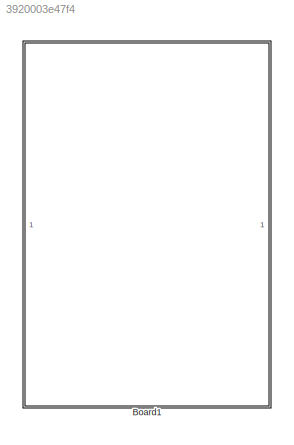
MODEL slx_3920003e47f4
KIND model
CONFIG AbsTol = auto
CONFIG EnableMultiTasking = off
CONFIG FixedStep = auto
CONFIG MaxStep = auto
CONFIG MinStep = auto
CONFIG RelTol = 1e-3
CONFIG SampleTimeConstraint = Unconstrained
CONFIG SolverName = FixedStepDiscrete
CONFIG StartTime = 0.0
CONFIG StopTime = 10.0
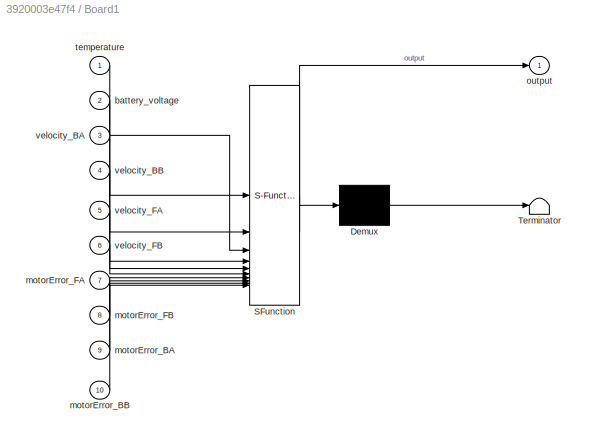
BLOCK [SubSystem] Board1
  ErrorFcn = Stateflow.Translate.translate
  PermitHierarchicalResolution = ExplicitOnly
  PortSchema = {"entries":[{"content":{"sides":[{"content":{"connectorIds":["In1","In2","In5","In6","In7","In8","In9","In10","In3","In4"]},"type":"ConnectorPlacement.EquallySpacedRectSide","uuid":"b6a15a71-62ba-4c0a-9258-d789a7bdd6d1"},{"content":{"connectorIds":["Out1"],"side":"RIGHT"},"type":"ConnectorPlacement.EquallySpacedRectSide","uuid":"3fc9ae7f-a60a-4f21-93ff-22852c889f3a"},{"content":{"side":"TOP"},"typ...<+277ch>
  SFBlockType = Chart
  TreatAsAtomicUnit = on
BLOCK [Demux] Board1/ Demux 
  Outputs = 1
BLOCK [S-Function] Board1/ SFunction 
  EnableBusSupport = off
  FunctionName = sf_sfun
  PortCounts = [10 2]
  SFcnIsStateOwnerBlock = off
  SFunctionDeploymentMode = off
  Tag = Stateflow S-Function 2
BLOCK [Terminator] Board1/ Terminator 
BLOCK [Inport] Board1/battery_voltage
  Port = 2
BLOCK [Inport] Board1/motorError_BA
  Port = 9
BLOCK [Inport] Board1/motorError_BB
  Port = 10
BLOCK [Inport] Board1/motorError_FA
  Port = 7
BLOCK [Inport] Board1/motorError_FB
  Port = 8
BLOCK [Outport] Board1/output
BLOCK [Inport] Board1/temperature
BLOCK [Inport] Board1/velocity_BA
  Port = 3
BLOCK [Inport] Board1/velocity_BB
  Port = 4
BLOCK [Inport] Board1/velocity_FA
  Port = 5
BLOCK [Inport] Board1/velocity_FB
  Port = 6
CHART Board1 states=192 transitions=383
  STATE_LABEL 'setSTalk'
  STATE_LABEL "SCRIPT:\nfunction setSTalk\n% Imposta a livello alto (1) la linea di controllo S_TALK (Slave Talk).\n%\n% Descrizione:\n%   La Board (Slave) chiama questa funzione per asserire il controllo del bus.\n%\n% Dipendenze:\n%   Richiede 'board1_functions.h' e l'implementazione C di 'IO_Set_SlaveTalk'.\n\n    coder.cinclude('board1_functions.h');\n    coder.ceval('IO_Set_SlaveTalk');\n\nend"
  STATE_LABEL 'Init_Data'
  STATE_LABEL "SCRIPT:\nfunction Init_Data\n% Inizializzazione globale del sistema e configurazione di default.\n%\n% Descrizione:\n%   Questa funzione prepara l'ambiente di lavoro iniziale:\n%   1. Richiama i costruttori per tutte le strutture dati complesse\n%   2. Imposta le variabili operative di default.\n\n    % Inizializzazione stati logici\n    state = Init_State(); \n    global_state = Init_Global_State(); \n    de...<+3608ch>"
  STATE_LABEL 'Supervision_task'
  STATE_LABEL 'Board_state'
  STATE_LABEL 'y = isSessionhigh'
  STATE_LABEL "SCRIPT:\nfunction y = isSessionhigh\n% Legge lo stato del segnale SESSION.\n%\n% Output:\n%   - y: Boolean\n%     - true: Il segnale hardware SESSION è a livello ALTO (Attivo).\n%     - false: Il segnale è BASSO (Inattivo).\n%\n% Dipendenze:\n%   Interroga l'hardware tramite la funzione esterna 'IO_Read_Session()' \n%   definita in 'board1_functions.h'.\n\n    coder.cinclude('board1_functions.h');\n    y = fals...<+79ch>"
  STATE_LABEL 'y = Get_Timestamp'
  STATE_LABEL "SCRIPT:\nfunction y = Get_Timestamp\n% Ottiene il timestamp attuale del sistema.\n%\n% Descrizione:\n%   Wrapper per la funzione C 'Time_Get_Tick'. Restituisce il valore corrente\n%   del timer di sistema. Questo valore viene salvato e utilizzato come \n%   punto di partenza per calcolare i timeout nelle transizioni di stato.\n%\n% Output:\n%   - y: uint32 rappresentante il tempo attuale del microcontrollor...<+196ch>"
  STATE_LABEL 'y = Check_Timeout_Us(start_time, min_elapsed_time)'
  STATE_LABEL "SCRIPT:\nfunction y = Check_Timeout_Us(start_time, min_elapsed_time)\n% Verifica se è trascorso un intervallo di tempo specifico (in microsecondi).\n%\n% Descrizione:\n%   Funzione che calcola la differenza tra il tempo attuale e lo 'start_time'. \n%   Restituisce true solo se il delta supera 'min_elapsed_time'.\n%   È il cuore della gestione dei timeout per l'handshake e la ricezione pacchetti.\n%\n% Inpu...<+423ch>"
  STATE_LABEL 'y = Check_Timeout_Ms(start_time, min_elapsed_time)'
  STATE_LABEL "SCRIPT:\nfunction y = Check_Timeout_Ms(start_time, min_elapsed_time)\n% Verifica se è trascorso un intervallo di tempo specifico (in MILLISECONDI).\n%\n% Descrizione:\n%   Funzione per la gestione di timeout o ritardi nell'ordine\n%   dei millisecondi (ms). Calcola la differenza tra il tick attuale di sistema\n%   e lo 'start_time'. Restituisce true se il delta supera la soglia.\n%   \n%   A differenza di ...<+502ch>"
  STATE_LABEL 'y = isMTalkhigh'
  STATE_LABEL "SCRIPT:\nfunction y = isMTalkhigh\n% Legge lo stato della linea M_TALK (Master Talk).\n%\n% Output:\n%   - y: Boolean\n%     - true: La Board Master sta asserendo la linea (Livello Alto).\n%     - false: La linea M_TALK è bassa (Idle).\n%\n% Dipendenze:\n%   Chiama la funzione esterna 'IO_Read_MasterTalk()' da 'board1_functions.h'.\n\n    coder.cinclude('board1_functions.h');\n    y = false; % Inizializzazione...<+61ch>"
  STATE_LABEL 'Normal\nex: Abort_Communication();\n'
  STATE_LABEL 'Supervisor'
  STATE_LABEL 'Waiting_to_start\n\n'
  STATE_LABEL 'Receive_state\nen: Wait_State(); resetSTalk(); time_comm = Get_Timestamp();'
  STATE_LABEL 'Update_Local_State'
  STATE_LABEL 'SCRIPT:\nfunction Update_Local_State\n% Aggiorna la struttura dello stato locale con i valori correnti dei sensori.\n%\n% Descrizione:\n%   Questa funzione esegue uno "snapshot" istantaneo di tutte le variabili \n%   di input (batteria, temperatura, velocità motori) e le copia \n%   nella struttura \'state\'. \n\n    coder.cinclude(\'board1_functions.h\');\n    \n    % Ingresso sezione critica: Disabilita interr...<+594ch>'
  STATE_LABEL 'Wait_State'
  STATE_LABEL "SCRIPT:\nfunction Wait_State\n% Predispone la ricezione del pacchetto Stato Locale.\n%\n% Descrizione:\n%   Configura il driver UART per ricevere i dati in arrivo e salvarli nella \n%   struttura 'receivedStatePacket'.\n%\n% Dipendenze:\n%   Richiede 'board1_functions.h' e l'implementazione C di 'UART_Wait_State'.\n\n    coder.cinclude('board1_functions.h');\n    coder.ceval('UART_Wait_State', coder.ref(recei...<+21ch>"
  STATE_LABEL 'Update_Global_State'
  STATE_LABEL "SCRIPT:\nfunction Update_Global_State\n% Costruisce la visione globale del sistema.\n%\n% Descrizione:\n%   Questa funzione aggrega le informazioni provenienti dalle due fonti \n%   disponibili per creare il 'Global State':\n%   1. Dati Remoti: Estratti dal pacchetto ricevuto (receivedStatePacket).\n%   2. Dati Locali: Presi dalla struttura 'state' appena.\n%   3. Logica Derivata: Flag calcolati dalla logi...<+977ch>"
  STATE_LABEL 'Wait_Global_State'
  STATE_LABEL "SCRIPT:\nfunction Wait_Global_State\n% Predispone la ricezione del pacchetto Stato Globale.\n%\n% Descrizione:\n%   Configura la ricezione per il pacchetto di Global State.\n%   I dati ricevuti verranno scritti in 'receivedGlobalStatePacket'.\n%\n% Dipendenze:\n%   Richiede 'board1_functions.h' e l'implementazione C di 'UART_Wait_GlobalState'.\n\n    coder.cinclude('board1_functions.h');\n    coder.ceval('UAR...<+63ch>"
  STATE_LABEL 'Send_Local_State'
  STATE_LABEL "SCRIPT:\nfunction Send_Local_State\n% Avvia la trasmissione del pacchetto Stato Locale via UART.\n%\n% Descrizione:\n%   Invoca la routine C che calcola il CRC, serializza la struttura 'state'\n%   e avvia il trasferimento per l'invio.\n%\n% Dipendenze:\n%   Richiede 'board1_functions.h' e l'implementazione C di 'UART_Send_Local_State'.\n\n    coder.cinclude('board1_functions.h');\n    coder.ceval('UART_Send_...<+37ch>"
  STATE_LABEL 'Wait_Decision'
  STATE_LABEL "SCRIPT:\nfunction Wait_Decision\n% Predispone la ricezione del pacchetto Decisione.\n%\n% Descrizione:\n%   Configura la ricezione per il pacchetto contenente i comandi di attuazione.\n%   I dati verranno salvati in 'receivedDecisionPacket'.\n%\n% Dipendenze:\n%   Richiede 'board1_functions.h' e l'implementazione C di 'UART_Wait_Decision'.\n\n    coder.cinclude('board1_functions.h');\n    coder.ceval('UART_Wa...<+53ch>"
  STATE_LABEL 'Send_Global_State'
  STATE_LABEL "SCRIPT:\nfunction Send_Global_State\n% Avvia la trasmissione del pacchetto Stato Globale.\n%\n% Descrizione:\n%   Invia la struttura aggregata 'global_state'.\n%\n% Dipendenze:\n%   Richiede 'board1_functions.h' e l'implementazione C di 'UART_Send_GlobalState'.\n\n    coder.cinclude('board1_functions.h');\n    \n    coder.ceval('UART_Send_GlobalState', coder.rref(global_state));\nend"
  STATE_LABEL 'y = Verify_State_Integrity'
  STATE_LABEL "SCRIPT:\nfunction y = Verify_State_Integrity\n% Verifica l'integrità del pacchetto Stato Locale ricevuto.\n%\n% Descrizione:\n%   Analizza la correttezza della struttura 'receivedStatePacket'.\n%\n% Output:\n%   - y: Boolean\n%     - true: I dati sono validi.\n%     - false: Pacchetto corrotto. \n%\n% Dipendenze:\n%   Richiede 'board1_functions.h' e l'implementazione C di 'CRC_Check_State'.\n\n    coder.cinclude...<+132ch>"
  STATE_LABEL 'Send_Decision'
  STATE_LABEL "SCRIPT:\nfunction Send_Decision\n% Avvia la trasmissione del pacchetto Decisione.\n%\n% Descrizione:\n%   Invia i comandi finali calcolati.\n%\n% Dipendenze:\n%   Richiede 'board1_functions.h' e l'implementazione C di 'UART_Send_Decision'.\n\n    coder.cinclude('board1_functions.h');\n    \n    coder.ceval('UART_Send_Decision', coder.rref(decision));\nend"
  STATE_LABEL 'y = Verify_Global_Integrity'
  STATE_LABEL "SCRIPT:\nfunction y = Verify_Global_Integrity\n% Verifica l'integrità del pacchetto Stato Globale.\n%\n% Descrizione:\n%   Analizza la correttezza della struttura 'receivedGlobalStatePacket'.\n%\n% Output:\n%   - y: Boolean\n%     - true: I dati sono validi.\n%     - false: Pacchetto corrotto. \n%\n% Dipendenze:\n%   Richiede 'board1_functions.h' e l'implementazione C di 'CRC_Check_GlobalState'.\n\n    coder.cin...<+131ch>"
CHART  states=0 transitions=0
